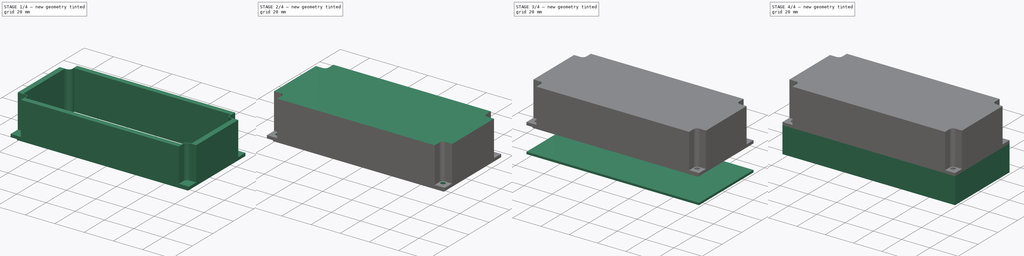
[diagram: build sequence overview — one tinted view per stage of 4, left to right]
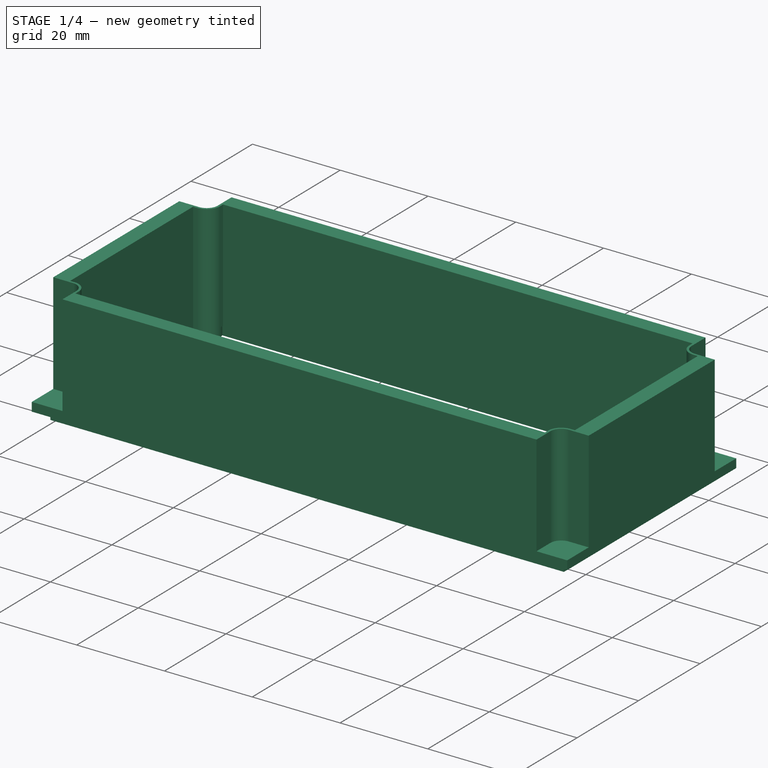
[diagram: stage 1 of 4 — iso view after this stage's code; geometry added in this stage tinted green]
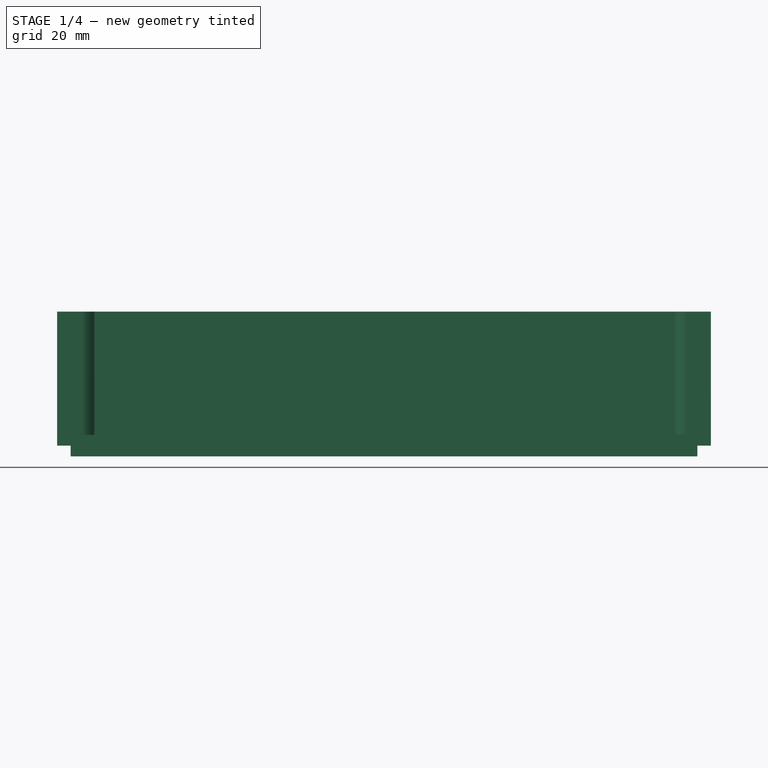
[diagram: stage 1 of 4 — front view after this stage's code; geometry added in this stage tinted green]
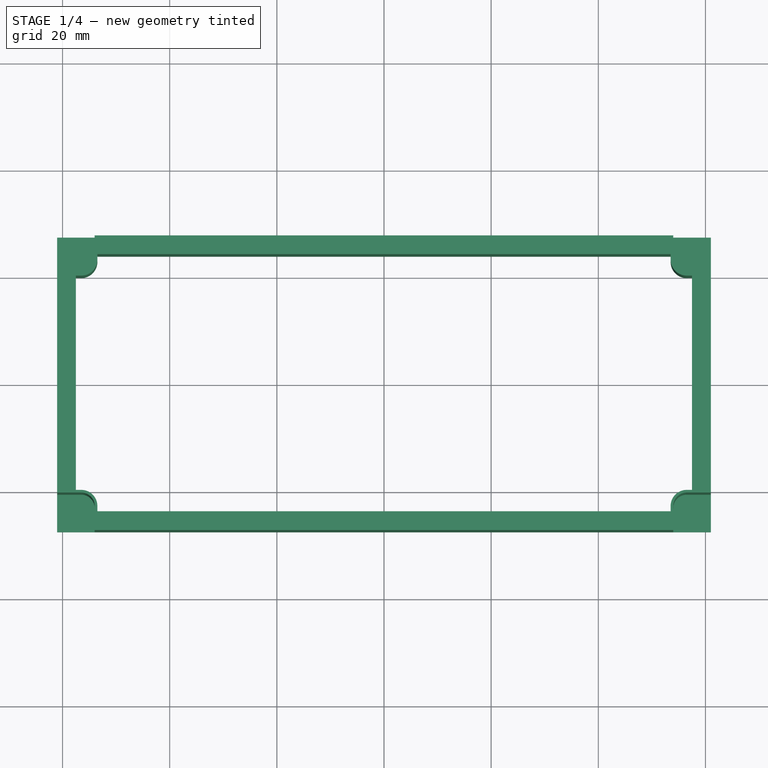
[diagram: stage 1 of 4 — top view after this stage's code; geometry added in this stage tinted green]
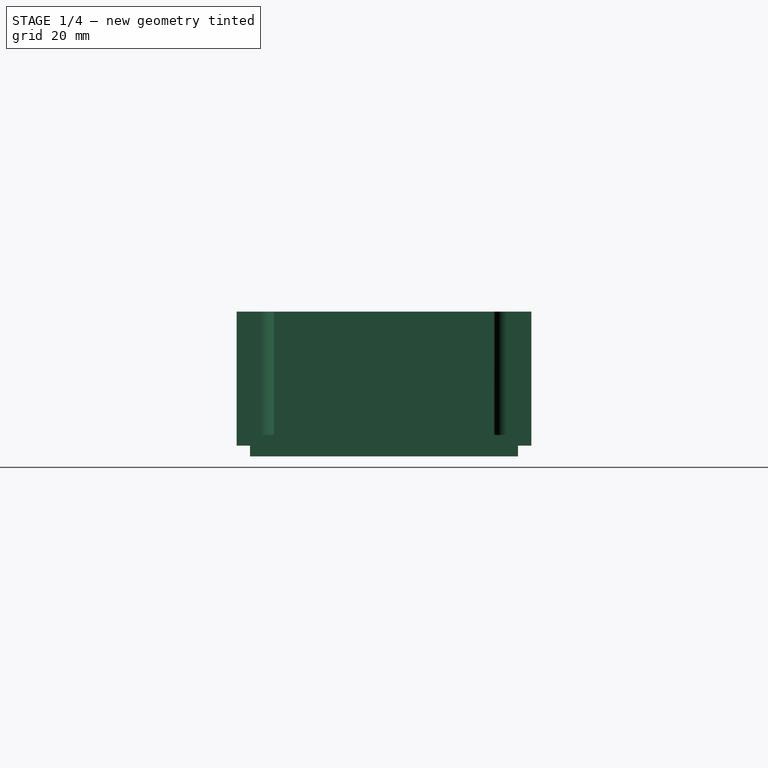
[diagram: stage 1 of 4 — right view after this stage's code; geometry added in this stage tinted green]
FCSTD DOCUMENT  (FreeCAD 0.21R33668 +26 (Git))
Label: qc_jig_box
License: All rights reserved
LicenseURL: https://en.wikipedia.org/wiki/All_rights_reserved
objects: Sketcher::SketchObject×11, PartDesign::Pad×8, PartDesign::Pocket×3, PartDesign::Body×2, PartDesign::Plane×2
note: 37 computed .brp shape members not serialized (recipe doc carries the construction recipe); baked Part::Feature solids carry a one-line shape summary decoded from their .brp

FEATURE [PartDesign::Body] Body
  Group = -> [Sketch,Pad,Sketch001,Pad001,Sketch002,Pad002,Sketch003,Pad003]
  Origin = -> Origin
  Tip = -> Pad003
FEATURE [PartDesign::Plane] DatumPlane
  AttachmentOffset = pos=(0,0,17) rot=(0,0,1;0rad)
  Length = 138.383
  MapMode = 5
  Placement = pos=(0,0,17) rot=(0,0,1;0rad)
  ResizeMode = 0
  Support = -> [XY_Plane001]
  Width = 71.3829
FEATURE [Sketcher::SketchObject] Sketch004
  FullyConstrained = true
  MapMode = 5
  Placement = pos=(0,0,17) rot=(0,0,1;0rad)
  Support = -> [DatumPlane]
  sketch-geometry (18):
    g0: LineSegment StartX=-58.5 StartY=-25 StartZ=0 EndX=-58.5 EndY=25 EndZ=0
    g1: LineSegment StartX=-58.5 StartY=25 StartZ=0 EndX=58.5 EndY=25 EndZ=0
    g2: LineSegment StartX=58.5 StartY=25 StartZ=0 EndX=58.5 EndY=-25 EndZ=0
    g3: LineSegment StartX=58.5 StartY=-25 StartZ=0 EndX=-58.5 EndY=-25 EndZ=0
    g4: GeomPoint X=0 Y=0 Z=0
    g5: GeomPoint X=0 Y=0 Z=0
    g6: Circle CenterX=-56.5 CenterY=23 CenterZ=0 NormalX=0 NormalY=0 NormalZ=1 AngleXU=0 Radius=1.25
    g7: Circle CenterX=-56.5 CenterY=-23 CenterZ=0 NormalX=0 NormalY=0 NormalZ=1 AngleXU=0 Radius=1.25
    g8: Circle CenterX=56.5 CenterY=-23 CenterZ=0 NormalX=0 NormalY=0 NormalZ=1 AngleXU=0 Radius=1.25
    g9: Circle CenterX=56.5 CenterY=23 CenterZ=0 NormalX=0 NormalY=0 NormalZ=1 AngleXU=0 Radius=1.25
    g10: ArcOfCircle CenterX=-56.5 CenterY=23 CenterZ=0 NormalX=0 NormalY=0 NormalZ=1 AngleXU=0 Radius=3 StartAngle=4.37255 EndAngle=6.62302
    g11: ArcOfCircle CenterX=-56.5 CenterY=-23 CenterZ=0 NormalX=0 NormalY=0 NormalZ=1 AngleXU=0 Radius=3 StartAngle=5.94335 EndAngle=8.19382
    g12: ArcOfCircle CenterX=56.5 CenterY=-23 CenterZ=0 NormalX=0 NormalY=0 NormalZ=1 AngleXU=0 Radius=3 StartAngle=1.23096 EndAngle=3.48143
    g13: ArcOfCircle CenterX=56.5 CenterY=23 CenterZ=0 NormalX=0 NormalY=0 NormalZ=1 AngleXU=0 Radius=3 StartAngle=2.80176 EndAngle=5.05223
    g14: LineSegment StartX=-53.6716 StartY=24 StartZ=0 EndX=53.6716 EndY=24 EndZ=0
    g15: LineSegment StartX=-57.5 StartY=-20.1716 StartZ=0 EndX=-57.5 EndY=20.1716 EndZ=0
    g16: LineSegment StartX=57.5 StartY=20.1716 StartZ=0 EndX=57.5 EndY=-20.1716 EndZ=0
    g17: LineSegment StartX=53.6716 StartY=-24 StartZ=0 EndX=-53.6716 EndY=-24 EndZ=0
  constraints (45):
    c: Coincident(g0,g1)
    c: Coincident(g1,g2)
    c: Coincident(g2,g3)
    c: Coincident(g3,g0)
    c: Horizontal(g1)
    c: Horizontal(g3)
    c: Vertical(g0)
    c: Vertical(g2)
    c: Symmetric(g1,g0,g4)
    c: Coincident(g4,g-1)
    c: DistanceX(g1,g1) = 117
    c: DistanceY(g0,g0) = 50
    c: Coincident(g5,g4)
    c: DistanceY(g7,g6) = 46
    c: DistanceX(g6,g9) = 113
    c: Symmetric(g6,g9,g-2)
    c: Symmetric(g6,g7,g-1)
    c: Vertical(g9,g8)
    c: Horizontal(g8,g7)
    c: Equal(g6,g7)
    c: Equal(g7,g9)
    c: Equal(g9,g8)
    c: Diameter(g6) = 2.5
    c: Coincident(g10,g6)
    c: Coincident(g11,g7)
    c: Coincident(g12,g8)
    c: Coincident(g13,g9)
    c: Equal(g12,g11)
    c: Diameter(g10) = 6
    c: Coincident(g14,g10)
    c: Coincident(g15,g10)
    c: Coincident(g11,g15)
    c: Coincident(g11,g17)
    c: Coincident(g16,g13)
    c: Coincident(g14,g13)
    c: Coincident(g17,g12)
    c: Coincident(g12,g16)
    c: DistanceY(g12,g13) = 48
    c: Symmetric(g13,g12,g-1)
    c: Horizontal(g17)
    c: Horizontal(g14)
    c: Vertical(g16)
    c: Vertical(g15)
    c: Symmetric(g10,g13,g-2)
    c: DistanceX(g10,g13) = 115
FEATURE [PartDesign::Pad] Pad004
  Direction = (0,0,1)
  Length = 2
  Length2 = 10
  Placement = pos=(0,0,17) rot=(0,0,1;0rad)
  Profile = -> Sketch004
  ReferenceAxis = -> Sketch004 [N_Axis]
  Reversed = true
  Type = 0
FEATURE [Sketcher::SketchObject] Sketch007
  FullyConstrained = true
  MapMode = 5
  Placement = pos=(0,0,17) rot=(0,0,1;0rad)
  Support = -> [DatumPlane]
  sketch-geometry (6):
    g0: GeomPoint X=0 Y=0 Z=0
    g1: GeomPoint X=0 Y=0 Z=0
    g2: Circle CenterX=-56.5 CenterY=23 CenterZ=0 NormalX=0 NormalY=0 NormalZ=1 AngleXU=0 Radius=1.5
    g3: Circle CenterX=-56.5 CenterY=-23 CenterZ=0 NormalX=0 NormalY=0 NormalZ=1 AngleXU=0 Radius=1.5
    g4: Circle CenterX=56.5 CenterY=-23 CenterZ=0 NormalX=0 NormalY=0 NormalZ=1 AngleXU=0 Radius=1.5
    g5: Circle CenterX=56.5 CenterY=23 CenterZ=0 NormalX=0 NormalY=0 NormalZ=1 AngleXU=0 Radius=1.5
  constraints (12):
    c: Coincident(g0,g-1)
    c: Coincident(g1,g0)
    c: DistanceY(g3,g2) = 46
    c: DistanceX(g2,g5) = 113
    c: Symmetric(g2,g5,g-2)
    c: Symmetric(g2,g3,g-1)
    c: Vertical(g5,g4)
    c: Horizontal(g4,g3)
    c: Equal(g3,g5)
    c: Equal(g5,g4)
    c: Diameter(g2) = 3
    c: Equal(g2,g3)
FEATURE [Sketcher::SketchObject] Sketch008
  FullyConstrained = true
  MapMode = 5
  Placement = pos=(0,0,17) rot=(0,0,1;0rad)
  Support = -> [DatumPlane]
  sketch-geometry (39):
    g0: GeomPoint X=0 Y=0 Z=0
    g1: GeomPoint X=0 Y=0 Z=0
    g2: Circle CenterX=-56.5 CenterY=23 CenterZ=0 NormalX=0 NormalY=0 NormalZ=1 AngleXU=0 Radius=1.25
    g3: Circle CenterX=-56.5 CenterY=-23 CenterZ=0 NormalX=0 NormalY=0 NormalZ=1 AngleXU=0 Radius=1.25
    g4: Circle CenterX=56.5 CenterY=-23 CenterZ=0 NormalX=0 NormalY=0 NormalZ=1 AngleXU=0 Radius=1.25
    g5: Circle CenterX=56.5 CenterY=23 CenterZ=0 NormalX=0 NormalY=0 NormalZ=1 AngleXU=0 Radius=1.25
    g6: ArcOfCircle CenterX=-56.5 CenterY=23 CenterZ=0 NormalX=0 NormalY=0 NormalZ=1 AngleXU=0 Radius=3 StartAngle=4.71239 EndAngle=6.28319
    g7: ArcOfCircle CenterX=-56.5 CenterY=-23 CenterZ=0 NormalX=0 NormalY=0 NormalZ=1 AngleXU=0 Radius=3 StartAngle=2e-16 EndAngle=1.5708
    g8: ArcOfCircle CenterX=56.5 CenterY=-23 CenterZ=0 NormalX=0 NormalY=0 NormalZ=1 AngleXU=0 Radius=3 StartAngle=1.5708 EndAngle=3.14159
    g9: ArcOfCircle CenterX=56.5 CenterY=23 CenterZ=0 NormalX=0 NormalY=0 NormalZ=1 AngleXU=0 Radius=3 StartAngle=3.14159 EndAngle=4.71239
    g10: LineSegment StartX=-53.5 StartY=24 StartZ=0 EndX=53.5 EndY=24 EndZ=0
    g11: LineSegment StartX=-57.5 StartY=-20 StartZ=0 EndX=-57.5 EndY=20 EndZ=0
    g12: LineSegment StartX=57.5 StartY=20 StartZ=0 EndX=57.5 EndY=-20 EndZ=0
    g13: LineSegment StartX=53.5 StartY=-24 StartZ=0 EndX=-53.5 EndY=-24 EndZ=0
    g14: LineSegment StartX=-56.5 StartY=20 StartZ=0 EndX=-57.5 EndY=20 EndZ=0
    g15: LineSegment StartX=-53.5 StartY=23 StartZ=0 EndX=-53.5 EndY=24 EndZ=0
    g16: LineSegment StartX=-56.5 StartY=-20 StartZ=0 EndX=-57.5 EndY=-20 EndZ=0
    g17: LineSegment StartX=-53.5 StartY=-23 StartZ=0 EndX=-53.5 EndY=-24 EndZ=0
    g18: LineSegment StartX=53.5 StartY=-23 StartZ=0 EndX=53.5 EndY=-24 EndZ=0
    g19: LineSegment StartX=56.5 StartY=-20 StartZ=0 EndX=57.5 EndY=-20 EndZ=0
    g20: LineSegment StartX=53.5 StartY=23 StartZ=0 EndX=53.5 EndY=24 EndZ=0
    g21: LineSegment StartX=56.5 StartY=20 StartZ=0 EndX=57.5 EndY=20 EndZ=0
    g22: LineSegment StartX=-61 StartY=-20.5 StartZ=0 EndX=-61 EndY=20.5 EndZ=0
    g23: LineSegment StartX=-54 StartY=27.5 StartZ=0 EndX=54 EndY=27.5 EndZ=0
    g24: LineSegment StartX=61 StartY=20.5 StartZ=0 EndX=61 EndY=-20.5 EndZ=0
    g25: LineSegment StartX=54 StartY=-27.5 StartZ=0 EndX=-54 EndY=-27.5 EndZ=0
    g26: GeomPoint X=0 Y=0 Z=0
    g27: ArcOfCircle CenterX=-56.5 CenterY=-23 CenterZ=0 NormalX=0 NormalY=0 NormalZ=1 AngleXU=0 Radius=2.5 StartAngle=4e-16 EndAngle=1.5708
    g28: LineSegment StartX=-54 StartY=-23 StartZ=0 EndX=-54 EndY=-27.5 EndZ=0
    g29: LineSegment StartX=-56.5 StartY=-20.5 StartZ=0 EndX=-61 EndY=-20.5 EndZ=0
    g30: ArcOfCircle CenterX=56.5 CenterY=23 CenterZ=0 NormalX=0 NormalY=0 NormalZ=1 AngleXU=0 Radius=2.5 StartAngle=3.14159 EndAngle=4.71239
    g31: ArcOfCircle CenterX=-56.5 CenterY=23 CenterZ=0 NormalX=0 NormalY=0 NormalZ=1 AngleXU=0 Radius=2.5 StartAngle=4.71239 EndAngle=6.28319
    g32: LineSegment StartX=-56.5 StartY=20.5 StartZ=0 EndX=-61 EndY=20.5 EndZ=0
    g33: LineSegment StartX=-54 StartY=23 StartZ=0 EndX=-54 EndY=27.5 EndZ=0
    g34: LineSegment StartX=54 StartY=23 StartZ=0 EndX=54 EndY=27.5 EndZ=0
    g35: LineSegment StartX=56.5 StartY=20.5 StartZ=0 EndX=61 EndY=20.5 EndZ=0
    g36: LineSegment StartX=54 StartY=-23 StartZ=0 EndX=54 EndY=-27.5 EndZ=0
    g37: LineSegment StartX=56.5 StartY=-20.5 StartZ=0 EndX=61 EndY=-20.5 EndZ=0
    g38: ArcOfCircle CenterX=56.5 CenterY=-23 CenterZ=0 NormalX=0 NormalY=0 NormalZ=1 AngleXU=0 Radius=2.5 StartAngle=1.5708 EndAngle=3.14159
  constraints (90):
    c: Coincident(g0,g-1)
    c: Coincident(g1,g0)
    c: DistanceY(g3,g2) = 46
    c: DistanceX(g2,g5) = 113
    c: Symmetric(g2,g5,g-2)
    c: Symmetric(g2,g3,g-1)
    c: Vertical(g5,g4)
    c: Horizontal(g4,g3)
    c: Equal(g2,g3)
    c: Equal(g3,g5)
    c: Equal(g5,g4)
    c: Diameter(g2) = 2.5
    c: Coincident(g6,g2)
    c: Coincident(g7,g3)
    c: Coincident(g8,g4)
    c: Coincident(g9,g5)
    c: Equal(g8,g7)
    c: Diameter(g6) = 6
    c: Horizontal(g13)
    c: Horizontal(g10)
    c: Vertical(g12)
    c: Vertical(g11)
    c: Vertical(g15)
    c: Horizontal(g14)
    c: Vertical(g17)
    c: Vertical(g18)
    c: Horizontal(g21)
    c: Vertical(g20)
    c: Horizontal(g19)
    c: Horizontal(g16)
    c: Horizontal(g23)
    c: Horizontal(g25)
    c: Vertical(g22)
    c: Vertical(g24)
    c: Coincident(g26,g0)
    c: Tangent(g7,g17) = 1.5708
    c: Coincident(g27,g7)
    c: Diameter(g27) = 5
    c: Vertical(g28)
    c: Horizontal(g29)
    c: Tangent(g27,g29) = -1.5708
    c: Tangent(g27,g28) = 1.5708
    c: Coincident(g22,g29)
    c: Coincident(g25,g28)
    c: Coincident(g17,g13)
    c: Tangent(g7,g16) = -1.5708
    c: Coincident(g16,g11)
    c: Coincident(g30,g9)
    c: Coincident(g31,g6)
    c: Equal(g27,g31)
    c: Equal(g31,g30)
    c: Horizontal(g32)
    c: Vertical(g33)
    c: Vertical(g34)
    c: Horizontal(g35)
    c: Horizontal(g37)
    c: Vertical(g36)
    c: Coincident(g23,g33)
    c: Coincident(g22,g32)
    c: Tangent(g6,g14) = 1.5708
    c: Coincident(g11,g14)
    c: Tangent(g6,g15) = -1.5708
    c: Tangent(g31,g32) = 1.5708
    c: Tangent(g31,g33) = -1.5708
    c: Coincident(g15,g10)
    c: Tangent(g30,g34) = 1.5708
    c: Tangent(g30,g35) = -1.5708
    c: Tangent(g9,g20) = 1.5708
    c: Tangent(g9,g21) = -1.5708
    c: Coincident(g21,g12)
    c: Coincident(g20,g10)
    c: Coincident(g23,g34)
    c: Coincident(g24,g35)
    c: Coincident(g25,g36)
    c: Coincident(g24,g37)
    c: Tangent(g8,g19) = 1.5708
    c: Coincident(g12,g19)
    c: Tangent(g8,g18) = -1.5708
    c: Coincident(g18,g13)
    c: Coincident(g4,g38)
    c: Tangent(g37,g38) = 1.5708
    c: DistanceY(g13,g10) = 48
    c: DistanceX(g11,g12) = 115
    c: DistanceY(g25,g23) = 55
    c: DistanceX(g22,g24) = 122
    c: Symmetric(g25,g23,g-1)
    c: Symmetric(g24,g22,g-2)
    c: Coincident(g36,g38)
    c: Symmetric(g10,g13,g-1)
    c: Symmetric(g12,g11,g-2)
FEATURE [PartDesign::Pad] Pad005
  BaseFeature = -> Pad004
  Direction = (0,0,1)
  Length = 25
  Length2 = 10
  Placement = pos=(0,0,17) rot=(0,0,1;0rad)
  Profile = -> Sketch008
  ReferenceAxis = -> Sketch008 [N_Axis]
  Type = 0
FEATURE [Sketcher::SketchObject] Sketch009
  FullyConstrained = true
  MapMode = 5
  Placement = pos=(0,0,17) rot=(0,0,1;0rad)
  Support = -> [DatumPlane]
  sketch-geometry (47):
    g0: GeomPoint X=0 Y=0 Z=0
    g1: GeomPoint X=0 Y=0 Z=0
    g2: Circle CenterX=-56.5 CenterY=23 CenterZ=0 NormalX=0 NormalY=0 NormalZ=1 AngleXU=0 Radius=1.25
    g3: Circle CenterX=-56.5 CenterY=-23 CenterZ=0 NormalX=0 NormalY=0 NormalZ=1 AngleXU=0 Radius=1.25
    g4: Circle CenterX=56.5 CenterY=-23 CenterZ=0 NormalX=0 NormalY=0 NormalZ=1 AngleXU=0 Radius=1.25
    g5: Circle CenterX=56.5 CenterY=23 CenterZ=0 NormalX=0 NormalY=0 NormalZ=1 AngleXU=0 Radius=1.25
    g6: ArcOfCircle CenterX=-56.5 CenterY=23 CenterZ=0 NormalX=0 NormalY=0 NormalZ=1 AngleXU=0 Radius=3 StartAngle=4.71239 EndAngle=6.28319
    g7: ArcOfCircle CenterX=-56.5 CenterY=-23 CenterZ=0 NormalX=0 NormalY=0 NormalZ=1 AngleXU=0 Radius=3 StartAngle=4e-16 EndAngle=1.5708
    g8: ArcOfCircle CenterX=56.5 CenterY=-23 CenterZ=0 NormalX=0 NormalY=0 NormalZ=1 AngleXU=0 Radius=3 StartAngle=1.5708 EndAngle=3.14159
    g9: ArcOfCircle CenterX=56.5 CenterY=23 CenterZ=0 NormalX=0 NormalY=0 NormalZ=1 AngleXU=0 Radius=3 StartAngle=3.14159 EndAngle=4.71239
    g10: LineSegment StartX=-53.5 StartY=24 StartZ=0 EndX=53.5 EndY=24 EndZ=0
    g11: LineSegment StartX=-57.5 StartY=-20 StartZ=0 EndX=-57.5 EndY=20 EndZ=0
    g12: LineSegment StartX=57.5 StartY=20 StartZ=0 EndX=57.5 EndY=-20 EndZ=0
    g13: LineSegment StartX=53.5 StartY=-24 StartZ=0 EndX=-53.5 EndY=-24 EndZ=0
    g14: LineSegment StartX=-56.5 StartY=20 StartZ=0 EndX=-57.5 EndY=20 EndZ=0
    g15: LineSegment StartX=-53.5 StartY=23 StartZ=0 EndX=-53.5 EndY=24 EndZ=0
    g16: LineSegment StartX=-56.5 StartY=-20 StartZ=0 EndX=-57.5 EndY=-20 EndZ=0
    g17: LineSegment StartX=-53.5 StartY=-23 StartZ=0 EndX=-53.5 EndY=-24 EndZ=0
    g18: LineSegment StartX=53.5 StartY=-23 StartZ=0 EndX=53.5 EndY=-24 EndZ=0
    g19: LineSegment StartX=56.5 StartY=-20 StartZ=0 EndX=57.5 EndY=-20 EndZ=0
    g20: LineSegment StartX=53.5 StartY=23 StartZ=0 EndX=53.5 EndY=24 EndZ=0
    g21: LineSegment StartX=56.5 StartY=20 StartZ=0 EndX=57.5 EndY=20 EndZ=0
    g22: LineSegment StartX=-61 StartY=-20.5 StartZ=0 EndX=-61 EndY=20.5 EndZ=0
    g23: LineSegment StartX=-54 StartY=27.5 StartZ=0 EndX=54 EndY=27.5 EndZ=0
    g24: LineSegment StartX=61 StartY=20.5 StartZ=0 EndX=61 EndY=-20.5 EndZ=0
    g25: LineSegment StartX=54 StartY=-27.5 StartZ=0 EndX=-54 EndY=-27.5 EndZ=0
    g26: GeomPoint X=0 Y=0 Z=0
    g27: ArcOfCircle CenterX=-56.5 CenterY=-23 CenterZ=0 NormalX=0 NormalY=0 NormalZ=1 AngleXU=0 Radius=2.5 StartAngle=6e-16 EndAngle=1.5708
    g28: LineSegment StartX=-54 StartY=-23 StartZ=0 EndX=-54 EndY=-27.5 EndZ=0
    g29: LineSegment StartX=-56.5 StartY=-20.5 StartZ=0 EndX=-61 EndY=-20.5 EndZ=0
    g30: ArcOfCircle CenterX=56.5 CenterY=23 CenterZ=0 NormalX=0 NormalY=0 NormalZ=1 AngleXU=0 Radius=2.5 StartAngle=3.14159 EndAngle=4.71239
    g31: ArcOfCircle CenterX=-56.5 CenterY=23 CenterZ=0 NormalX=0 NormalY=0 NormalZ=1 AngleXU=0 Radius=2.5 StartAngle=4.71239 EndAngle=6.28319
    g32: LineSegment StartX=-56.5 StartY=20.5 StartZ=0 EndX=-61 EndY=20.5 EndZ=0
    g33: LineSegment StartX=-54 StartY=23 StartZ=0 EndX=-54 EndY=27.5 EndZ=0
    g34: LineSegment StartX=54 StartY=23 StartZ=0 EndX=54 EndY=27.5 EndZ=0
    g35: LineSegment StartX=56.5 StartY=20.5 StartZ=0 EndX=61 EndY=20.5 EndZ=0
    g36: LineSegment StartX=54 StartY=-23 StartZ=0 EndX=54 EndY=-27.5 EndZ=0
    g37: LineSegment StartX=56.5 StartY=-20.5 StartZ=0 EndX=61 EndY=-20.5 EndZ=0
    g38: ArcOfCircle CenterX=56.5 CenterY=-23 CenterZ=0 NormalX=0 NormalY=0 NormalZ=1 AngleXU=0 Radius=2.5 StartAngle=1.5708 EndAngle=3.14159
    g39: LineSegment StartX=-61 StartY=-20.5 StartZ=0 EndX=-61 EndY=-27.5 EndZ=0
    g40: LineSegment StartX=-61 StartY=-27.5 StartZ=0 EndX=-54 EndY=-27.5 EndZ=0
    g41: LineSegment StartX=-61 StartY=20.5 StartZ=0 EndX=-61 EndY=27.5 EndZ=0
    g42: LineSegment StartX=-54 StartY=27.5 StartZ=0 EndX=-61 EndY=27.5 EndZ=0
    g43: LineSegment StartX=54 StartY=27.5 StartZ=0 EndX=61 EndY=27.5 EndZ=0
    g44: LineSegment StartX=61 StartY=20.5 StartZ=0 EndX=61 EndY=27.5 EndZ=0
    g45: LineSegment StartX=54 StartY=-27.5 StartZ=0 EndX=61 EndY=-27.5 EndZ=0
    g46: LineSegment StartX=61 StartY=-27.5 StartZ=0 EndX=61 EndY=-20.5 EndZ=0
  constraints (110):
    c: Coincident(g0,g-1)
    c: Coincident(g1,g0)
    c: DistanceY(g3,g2) = 46
    c: DistanceX(g2,g5) = 113
    c: Symmetric(g2,g5,g-2)
    c: Symmetric(g2,g3,g-1)
    c: Vertical(g5,g4)
    c: Horizontal(g4,g3)
    c: Equal(g2,g3)
    c: Equal(g3,g5)
    c: Equal(g5,g4)
    c: Diameter(g2) = 2.5
    c: Coincident(g6,g2)
    c: Coincident(g7,g3)
    c: Coincident(g8,g4)
    c: Coincident(g9,g5)
    c: Equal(g8,g7)
    c: Diameter(g6) = 6
    c: Horizontal(g13)
    c: Horizontal(g10)
    c: Vertical(g12)
    c: Vertical(g11)
    c: Vertical(g15)
    c: Horizontal(g14)
    c: Vertical(g17)
    c: Vertical(g18)
    c: Horizontal(g21)
    c: Vertical(g20)
    c: Horizontal(g19)
    c: Horizontal(g16)
    c: Horizontal(g23)
    c: Horizontal(g25)
    c: Vertical(g22)
    c: Vertical(g24)
    c: Coincident(g26,g0)
    c: Tangent(g7,g17) = 1.5708
    c: Coincident(g27,g7)
    c: Diameter(g27) = 5
    c: Vertical(g28)
    c: Horizontal(g29)
    c: Tangent(g27,g29) = -1.5708
    c: Tangent(g27,g28) = 1.5708
    c: Coincident(g22,g29)
    c: Coincident(g25,g28)
    c: Coincident(g17,g13)
    c: Tangent(g7,g16) = -1.5708
    c: Coincident(g16,g11)
    c: Coincident(g30,g9)
    c: Coincident(g31,g6)
    c: Equal(g27,g31)
    c: Equal(g31,g30)
    c: Horizontal(g32)
    c: Vertical(g33)
    c: Vertical(g34)
    c: Horizontal(g35)
    c: Horizontal(g37)
    c: Vertical(g36)
    c: Coincident(g23,g33)
    c: Coincident(g22,g32)
    c: Tangent(g6,g14) = 1.5708
    c: Coincident(g11,g14)
    c: Tangent(g6,g15) = -1.5708
    c: Tangent(g31,g32) = 1.5708
    c: Tangent(g31,g33) = -1.5708
    c: Coincident(g15,g10)
    c: Tangent(g30,g34) = 1.5708
    c: Tangent(g30,g35) = -1.5708
    c: Tangent(g9,g20) = 1.5708
    c: Tangent(g9,g21) = -1.5708
    c: Coincident(g21,g12)
    c: Coincident(g20,g10)
    c: Coincident(g23,g34)
    c: Coincident(g24,g35)
    c: Coincident(g25,g36)
    c: Coincident(g24,g37)
    c: Tangent(g8,g19) = 1.5708
    c: Coincident(g12,g19)
    c: Tangent(g8,g18) = -1.5708
    c: Coincident(g18,g13)
    c: Coincident(g4,g38)
    c: Tangent(g37,g38) = 1.5708
    c: DistanceY(g13,g10) = 48
    c: DistanceX(g11,g12) = 115
    c: DistanceY(g25,g23) = 55
    c: DistanceX(g22,g24) = 122
    c: Symmetric(g25,g23,g-1)
    c: Symmetric(g24,g22,g-2)
    c: Coincident(g36,g38)
    c: Symmetric(g10,g13,g-1)
    c: Symmetric(g12,g11,g-2)
    c: Coincident(g39,g22)
    c: Vertical(g39)
    c: Coincident(g40,g39)
    c: Coincident(g40,g25)
    c: Horizontal(g40)
    c: Coincident(g41,g22)
    c: Vertical(g41)
    c: Coincident(g42,g23)
    c: Coincident(g42,g41)
    c: Horizontal(g42)
    c: Coincident(g43,g23)
    c: Horizontal(g43)
    c: Coincident(g44,g24)
    c: Coincident(g44,g43)
    c: Coincident(g45,g25)
    c: Horizontal(g45)
    c: Coincident(g46,g45)
    c: Coincident(g46,g24)
    c: Vertical(g46)
    c: Vertical(g44)
FEATURE [PartDesign::Pad] Pad006
  BaseFeature = -> Pad005
  Direction = (0,0,1)
  Length = 2
  Length2 = 10
  Placement = pos=(0,0,17) rot=(0,0,1;0rad)
  Profile = -> Sketch009
  ReferenceAxis = -> Sketch009 [N_Axis]
  Refine = true
  Type = 0
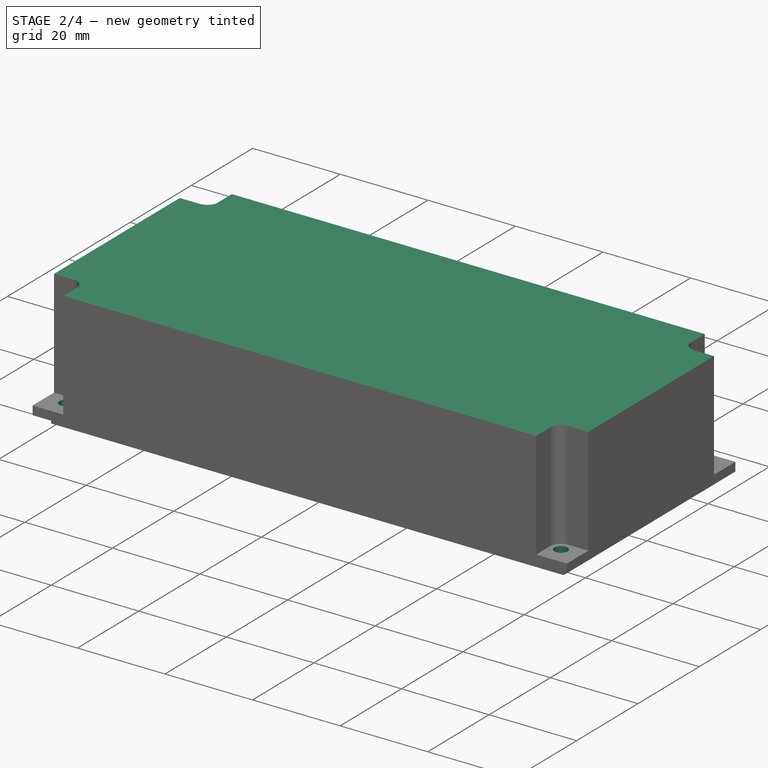
[diagram: stage 2 of 4 — iso view after this stage's code; geometry added in this stage tinted green]
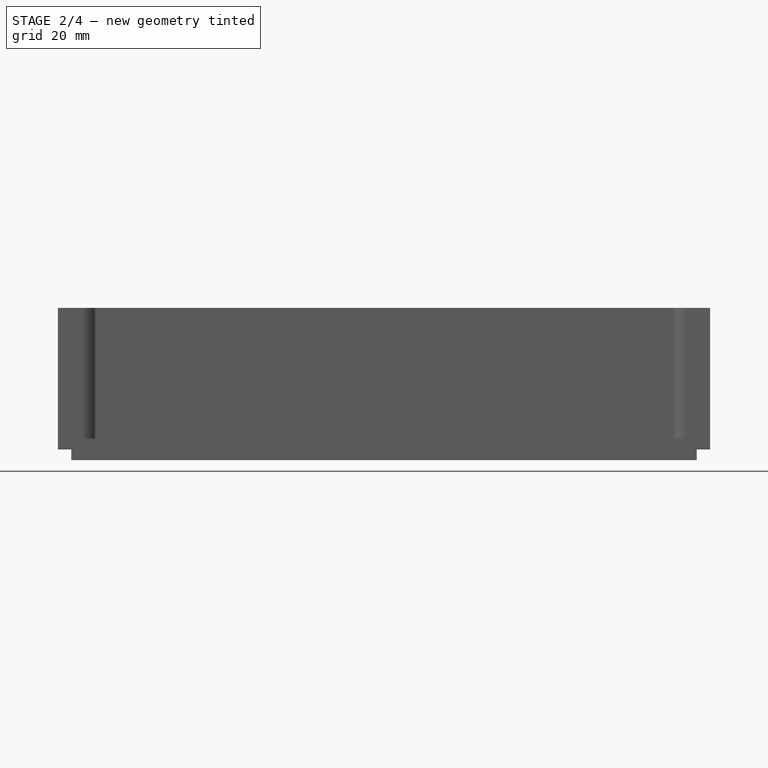
[diagram: stage 2 of 4 — front view after this stage's code; geometry added in this stage tinted green]
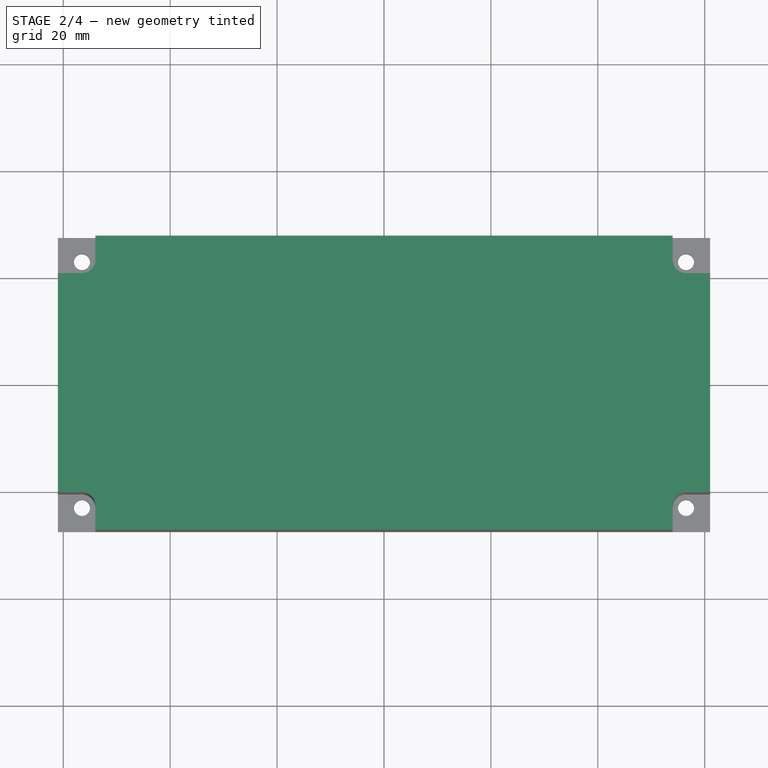
[diagram: stage 2 of 4 — top view after this stage's code; geometry added in this stage tinted green]
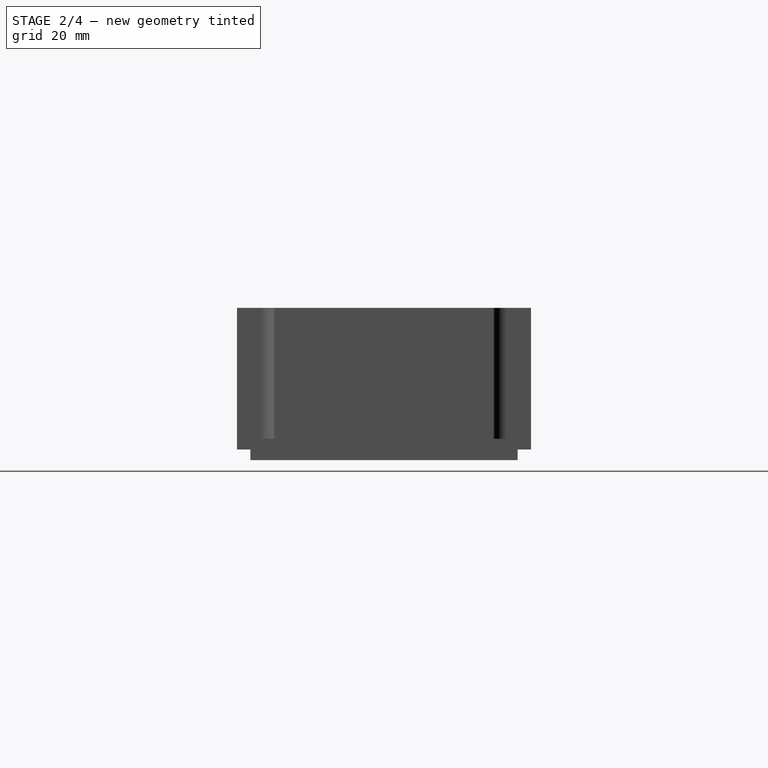
[diagram: stage 2 of 4 — right view after this stage's code; geometry added in this stage tinted green]
FEATURE [PartDesign::Pocket] Pocket
  BaseFeature = -> Pad006
  Direction = (0,0,-1)
  Length = 5
  Length2 = 5
  Midplane = true
  Placement = pos=(0,0,17) rot=(0,0,1;0rad)
  Profile = -> Sketch007
  ReferenceAxis = -> Sketch007 [N_Axis]
  Type = 1
FEATURE [PartDesign::Plane] DatumPlane001
  AttachmentOffset = pos=(0,0,42) rot=(0,0,1;0rad)
  Length = 138.383
  MapMode = 5
  Placement = pos=(0,0,42) rot=(0,0,1;0rad)
  ResizeMode = 0
  Support = -> [XY_Plane001]
  Width = 71.3829
FEATURE [Sketcher::SketchObject] Sketch010
  FullyConstrained = true
  MapMode = 5
  Placement = pos=(0,0,42) rot=(0,0,1;0rad)
  Support = -> [DatumPlane001]
  sketch-geometry (23):
    g0: GeomPoint X=0 Y=0 Z=0
    g1: GeomPoint X=0 Y=0 Z=0
    g2: Circle CenterX=-56.5 CenterY=23 CenterZ=0 NormalX=0 NormalY=0 NormalZ=1 AngleXU=0 Radius=1.25
    g3: Circle CenterX=-56.5 CenterY=-23 CenterZ=0 NormalX=0 NormalY=0 NormalZ=1 AngleXU=0 Radius=1.25
    g4: Circle CenterX=56.5 CenterY=-23 CenterZ=0 NormalX=0 NormalY=0 NormalZ=1 AngleXU=0 Radius=1.25
    g5: Circle CenterX=56.5 CenterY=23 CenterZ=0 NormalX=0 NormalY=0 NormalZ=1 AngleXU=0 Radius=1.25
    g6: LineSegment StartX=-61 StartY=-20.5 StartZ=0 EndX=-61 EndY=20.5 EndZ=0
    g7: LineSegment StartX=-54 StartY=27.5 StartZ=0 EndX=54 EndY=27.5 EndZ=0
    g8: LineSegment StartX=61 StartY=20.5 StartZ=0 EndX=61 EndY=-20.5 EndZ=0
    g9: LineSegment StartX=54 StartY=-27.5 StartZ=0 EndX=-54 EndY=-27.5 EndZ=0
    g10: GeomPoint X=0 Y=0 Z=0
    g11: ArcOfCircle CenterX=-56.5 CenterY=-23 CenterZ=0 NormalX=0 NormalY=0 NormalZ=1 AngleXU=0 Radius=2.5 StartAngle=0 EndAngle=1.5708
    g12: LineSegment StartX=-54 StartY=-23 StartZ=0 EndX=-54 EndY=-27.5 EndZ=0
    g13: LineSegment StartX=-56.5 StartY=-20.5 StartZ=0 EndX=-61 EndY=-20.5 EndZ=0
    g14: ArcOfCircle CenterX=56.5 CenterY=23 CenterZ=0 NormalX=0 NormalY=0 NormalZ=1 AngleXU=0 Radius=2.5 StartAngle=3.14159 EndAngle=4.71239
    g15: ArcOfCircle CenterX=-56.5 CenterY=23 CenterZ=0 NormalX=0 NormalY=0 NormalZ=1 AngleXU=0 Radius=2.5 StartAngle=4.71239 EndAngle=6.28319
    g16: LineSegment StartX=-56.5 StartY=20.5 StartZ=0 EndX=-61 EndY=20.5 EndZ=0
    g17: LineSegment StartX=-54 StartY=23 StartZ=0 EndX=-54 EndY=27.5 EndZ=0
    g18: LineSegment StartX=54 StartY=23 StartZ=0 EndX=54 EndY=27.5 EndZ=0
    g19: LineSegment StartX=56.5 StartY=20.5 StartZ=0 EndX=61 EndY=20.5 EndZ=0
    g20: LineSegment StartX=54 StartY=-23 StartZ=0 EndX=54 EndY=-27.5 EndZ=0
    g21: LineSegment StartX=56.5 StartY=-20.5 StartZ=0 EndX=61 EndY=-20.5 EndZ=0
    g22: ArcOfCircle CenterX=56.5 CenterY=-23 CenterZ=0 NormalX=0 NormalY=0 NormalZ=1 AngleXU=0 Radius=2.5 StartAngle=1.5708 EndAngle=3.14159
  constraints (51):
    c: Coincident(g0,g-1)
    c: Coincident(g1,g0)
    c: DistanceY(g3,g2) = 46
    c: DistanceX(g2,g5) = 113
    c: Symmetric(g2,g5,g-2)
    c: Symmetric(g2,g3,g-1)
    c: Vertical(g5,g4)
    c: Horizontal(g4,g3)
    c: Equal(g2,g3)
    c: Equal(g3,g5)
    c: Equal(g5,g4)
    c: Diameter(g2) = 2.5
    c: Horizontal(g7)
    c: Horizontal(g9)
    c: Vertical(g6)
    c: Vertical(g8)
    c: Coincident(g10,g0)
    c: Diameter(g11) = 5
    c: Vertical(g12)
    c: Horizontal(g13)
    c: Tangent(g11,g13) = -1.5708
    c: Tangent(g11,g12) = 1.5708
    c: Coincident(g6,g13)
    c: Coincident(g9,g12)
    c: Equal(g11,g15)
    c: Equal(g15,g14)
    c: Horizontal(g16)
    c: Vertical(g17)
    c: Vertical(g18)
    c: Horizontal(g19)
    c: Horizontal(g21)
    c: Coincident(g7,g17)
    c: Coincident(g6,g16)
    c: Tangent(g15,g16) = 1.5708
    c: Tangent(g15,g17) = -1.5708
    c: Tangent(g14,g18) = 1.5708
    c: Tangent(g14,g19) = -1.5708
    c: Coincident(g7,g18)
    c: Coincident(g8,g19)
    c: Coincident(g9,g20)
    c: Coincident(g8,g21)
    c: Coincident(g4,g22)
    c: Tangent(g21,g22) = 1.5708
    c: DistanceY(g9,g7) = 55
    c: DistanceX(g6,g8) = 122
    c: Symmetric(g9,g7,g-1)
    c: Symmetric(g8,g6,g-2)
    c: Coincident(g14,g5)
    c: Tangent(g20,g22) = -1.5708
    c: Coincident(g11,g3)
    c: Coincident(g15,g2)
FEATURE [PartDesign::Pad] Pad007
  BaseFeature = -> Pocket
  Direction = (0,0,1)
  Length = 1.5
  Length2 = 10
  Placement = pos=(0,0,17) rot=(0,0,1;0rad)
  Profile = -> Sketch010
  ReferenceAxis = -> Sketch010 [N_Axis]
  Refine = true
  Type = 0
FEATURE [Sketcher::SketchObject] Sketch011
  FullyConstrained = true
  MapMode = 5
  Placement = pos=(0,0,0) rot=(0.57735,0.57735,0.57735;2.0944rad)
  Support = -> [YZ_Plane001]
  sketch-geometry (6):
    g0: LineSegment StartX=-10 StartY=27.5 StartZ=0 EndX=-10 EndY=15 EndZ=0
    g1: LineSegment StartX=-10 StartY=15 StartZ=0 EndX=10 EndY=15 EndZ=0
    g2: LineSegment StartX=10 StartY=15 StartZ=0 EndX=10 EndY=27.5 EndZ=0
    g3: LineSegment StartX=7.5 StartY=30 StartZ=0 EndX=-7.5 EndY=30 EndZ=0
    g4: ArcOfCircle CenterX=-7.5 CenterY=27.5 CenterZ=0 NormalX=0 NormalY=0 NormalZ=1 AngleXU=0 Radius=2.5 StartAngle=1.5708 EndAngle=3.14159
    g5: ArcOfCircle CenterX=7.5 CenterY=27.5 CenterZ=0 NormalX=0 NormalY=0 NormalZ=1 AngleXU=0 Radius=2.5 StartAngle=5e-16 EndAngle=1.5708
  constraints (15):
    c: Coincident(g0,g1)
    c: Coincident(g1,g2)
    c: Horizontal(g3)
    c: Vertical(g0)
    c: Vertical(g2)
    c: DistanceY(g-1,g1) = 15
    c: Tangent(g3,g4) = -1.5708
    c: Tangent(g0,g4) = -1.5708
    c: Tangent(g3,g5) = -1.5708
    c: Tangent(g2,g5) = -1.5708
    c: Equal(g5,g4)
    c: Diameter(g5) = 5
    c: Symmetric(g0,g1,g-2)
    c: DistanceY(g1,g3) = 15
    c: DistanceX(g1,g1) = 20
FEATURE [PartDesign::Pocket] Pocket001
  BaseFeature = -> Pad007
  Direction = (-1,2e-16,-3e-16)
  Length = 5
  Length2 = 5
  Placement = pos=(0,0,17) rot=(0,0,1;0rad)
  Profile = -> Sketch011
  ReferenceAxis = -> Sketch011 [N_Axis]
  Type = 1
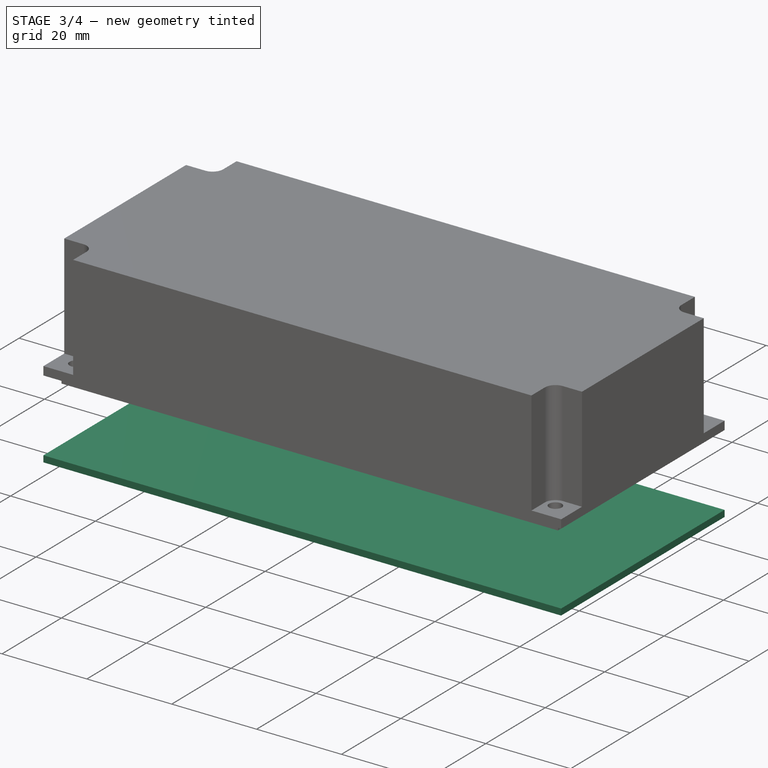
[diagram: stage 3 of 4 — iso view after this stage's code; geometry added in this stage tinted green]
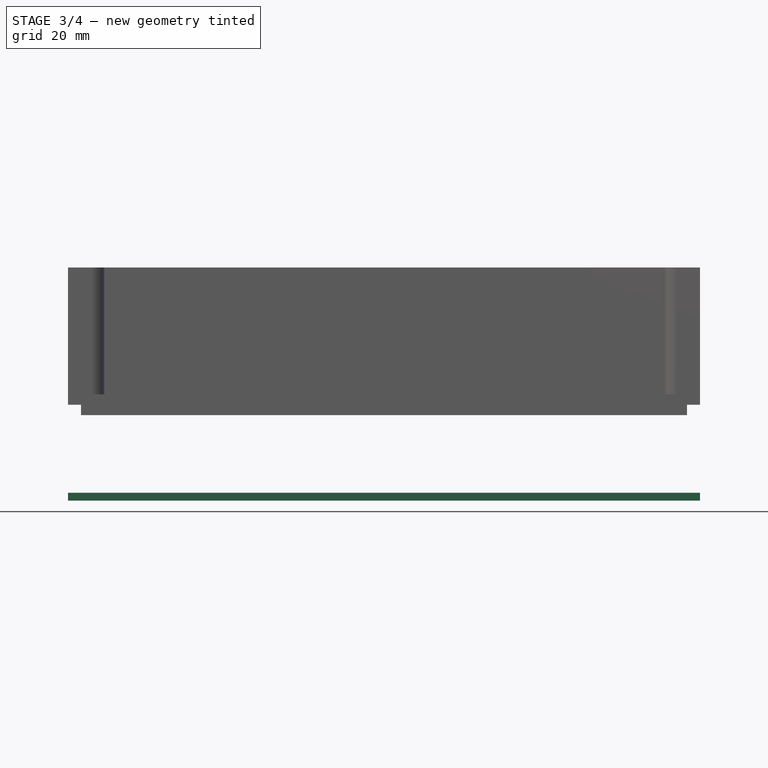
[diagram: stage 3 of 4 — front view after this stage's code; geometry added in this stage tinted green]
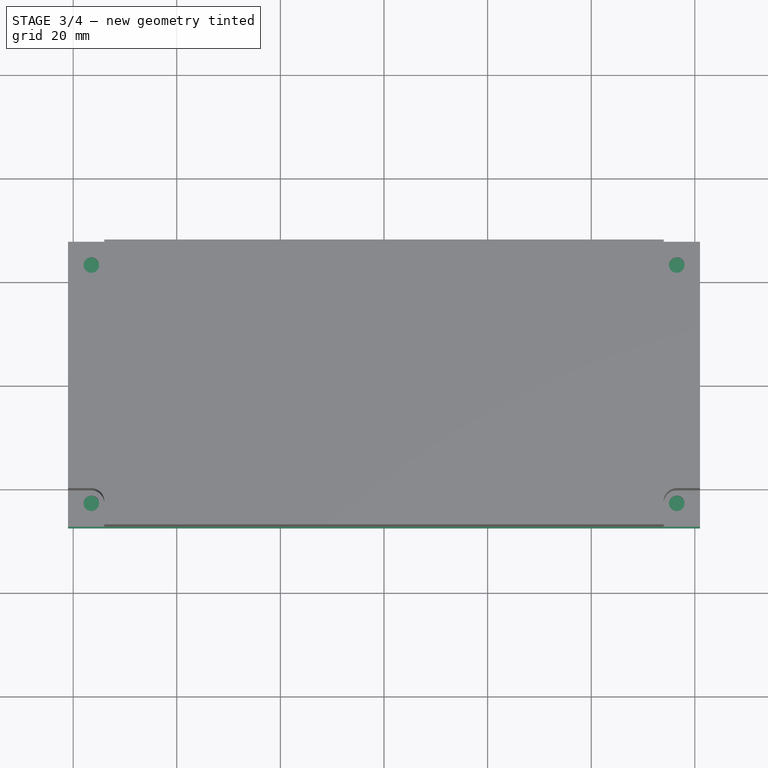
[diagram: stage 3 of 4 — top view after this stage's code; geometry added in this stage tinted green]
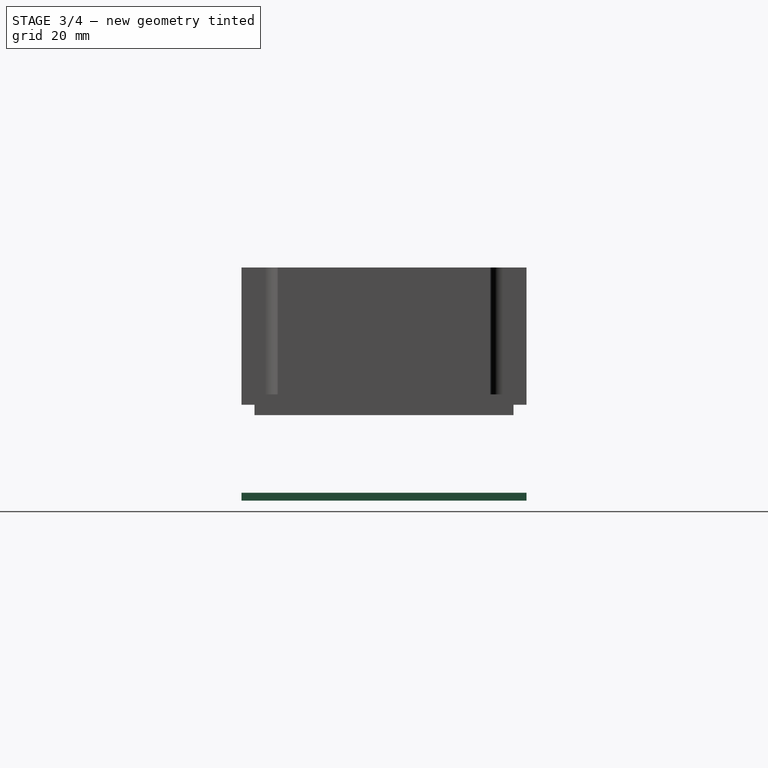
[diagram: stage 3 of 4 — right view after this stage's code; geometry added in this stage tinted green]
FEATURE [Sketcher::SketchObject] Sketch
  FullyConstrained = true
  MapMode = 5
  Support = -> [XY_Plane]
  sketch-geometry (5):
    g0: LineSegment StartX=-61 StartY=-27.5 StartZ=0 EndX=-61 EndY=27.5 EndZ=0
    g1: LineSegment StartX=-61 StartY=27.5 StartZ=0 EndX=61 EndY=27.5 EndZ=0
    g2: LineSegment StartX=61 StartY=27.5 StartZ=0 EndX=61 EndY=-27.5 EndZ=0
    g3: LineSegment StartX=61 StartY=-27.5 StartZ=0 EndX=-61 EndY=-27.5 EndZ=0
    g4: GeomPoint X=0 Y=0 Z=0
  constraints (12):
    c: Coincident(g0,g1)
    c: Coincident(g1,g2)
    c: Coincident(g2,g3)
    c: Coincident(g3,g0)
    c: Horizontal(g1)
    c: Horizontal(g3)
    c: Vertical(g0)
    c: Vertical(g2)
    c: Symmetric(g1,g0,g4)
    c: Coincident(g4,g-1)
    c: DistanceX(g1,g1) = 122
    c: DistanceY(g0,g0) = 55
FEATURE [PartDesign::Pad] Pad
  Direction = (0,0,1)
  Length = 1.5
  Length2 = 10
  Profile = -> Sketch
  ReferenceAxis = -> Sketch [N_Axis]
  Refine = true
  Reversed = true
  Type = 0
FEATURE [Sketcher::SketchObject] Sketch012
  FullyConstrained = true
  MapMode = 5
  Placement = pos=(0,0,0) rot=(1,0,0;1.5708rad)
  Support = -> [XZ_Plane001]
  sketch-geometry (12):
    g0: LineSegment StartX=10 StartY=27.5 StartZ=0 EndX=10 EndY=15 EndZ=0
    g1: LineSegment StartX=10 StartY=15 StartZ=0 EndX=40 EndY=15 EndZ=0
    g2: LineSegment StartX=40 StartY=15 StartZ=0 EndX=40 EndY=27.5 EndZ=0
    g3: LineSegment StartX=37.5 StartY=30 StartZ=0 EndX=12.5 EndY=30 EndZ=0
    g4: ArcOfCircle CenterX=12.5 CenterY=27.5 CenterZ=0 NormalX=0 NormalY=0 NormalZ=1 AngleXU=0 Radius=2.5 StartAngle=1.5708 EndAngle=3.14159
    g5: ArcOfCircle CenterX=37.5 CenterY=27.5 CenterZ=0 NormalX=0 NormalY=0 NormalZ=1 AngleXU=0 Radius=2.5 StartAngle=0 EndAngle=1.5708
    g6: LineSegment StartX=-15 StartY=15 StartZ=0 EndX=-10 EndY=15 EndZ=0
    g7: LineSegment StartX=-10 StartY=15 StartZ=0 EndX=-10 EndY=18.5 EndZ=0
    g8: LineSegment StartX=-11.5 StartY=20 StartZ=0 EndX=-13.5 EndY=20 EndZ=0
    g9: LineSegment StartX=-15 StartY=18.5 StartZ=0 EndX=-15 EndY=15 EndZ=0
    g10: ArcOfCircle CenterX=-13.5 CenterY=18.5 CenterZ=0 NormalX=0 NormalY=0 NormalZ=1 AngleXU=0 Radius=1.5 StartAngle=1.5708 EndAngle=3.14159
    g11: ArcOfCircle CenterX=-11.5 CenterY=18.5 CenterZ=0 NormalX=0 NormalY=0 NormalZ=1 AngleXU=0 Radius=1.5 StartAngle=-9e-16 EndAngle=1.5708
  constraints (32):
    c: Coincident(g0,g1)
    c: Coincident(g1,g2)
    c: Horizontal(g1)
    c: Horizontal(g3)
    c: Vertical(g0)
    c: Vertical(g2)
    c: DistanceY(g-1,g1) = 15
    c: Tangent(g3,g4) = -1.5708
    c: Tangent(g0,g4) = -1.5708
    c: Tangent(g3,g5) = -1.5708
    c: Tangent(g2,g5) = -1.5708
    c: Equal(g5,g4)
    c: Diameter(g5) = 5
    c: DistanceX(g1,g1) = 30
    c: DistanceY(g1,g3) = 15
    c: DistanceX(g-1,g0) = 10
    c: Coincident(g6,g7)
    c: Coincident(g9,g6)
    c: Horizontal(g6)
    c: Horizontal(g8)
    c: Vertical(g7)
    c: Vertical(g9)
    c: Horizontal(g6,g0)
    c: Tangent(g8,g10) = -1.5708
    c: Tangent(g9,g10) = -1.5708
    c: Tangent(g8,g11) = -1.5708
    c: Tangent(g7,g11) = -1.5708
    c: DistanceX(g9,g7) = 5
    c: Equal(g11,g10)
    c: Diameter(g11) = 3
    c: DistanceY(g6,g8) = 5
    c: DistanceX(g6,g-1) = 10
FEATURE [PartDesign::Pocket] Pocket002
  BaseFeature = -> Pocket001
  Direction = (0,1,2e-16)
  Length = 5
  Length2 = 5
  Placement = pos=(0,0,17) rot=(0,0,1;0rad)
  Profile = -> Sketch012
  ReferenceAxis = -> Sketch012 [N_Axis]
  Type = 1
FEATURE [PartDesign::Body] Body001
  Group = -> [DatumPlane,Sketch004,Pad004,Sketch007,Sketch008,Pad005,Sketch009,Pad006,Pocket,DatumPlane001,Sketch010,Pad007,Sketch011,Pocket001,Sketch012,Pocket002]
  Origin = -> Origin001
  Tip = -> Pocket002
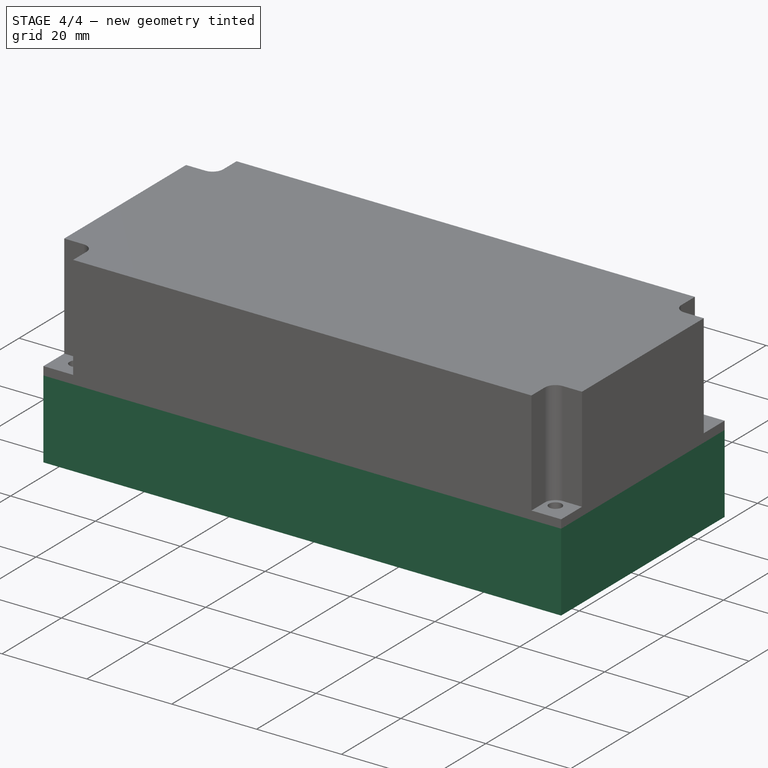
[diagram: stage 4 of 4 — iso view after this stage's code; geometry added in this stage tinted green]
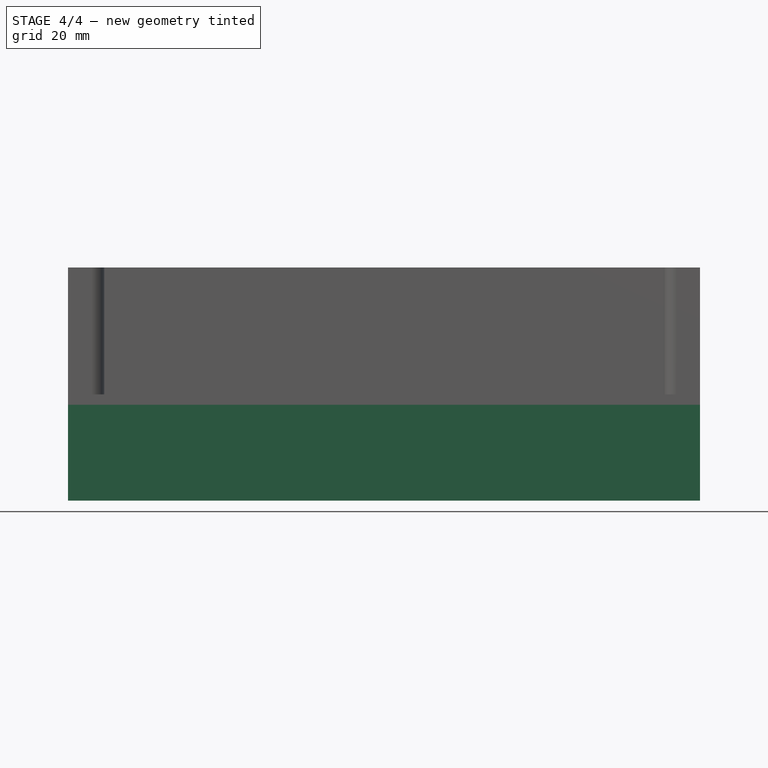
[diagram: stage 4 of 4 — front view after this stage's code; geometry added in this stage tinted green]
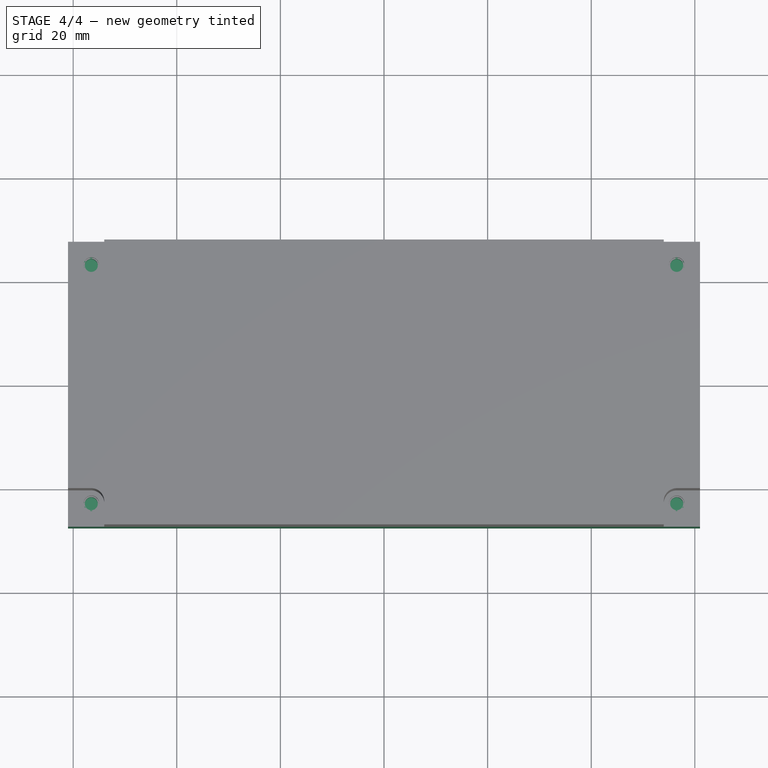
[diagram: stage 4 of 4 — top view after this stage's code; geometry added in this stage tinted green]
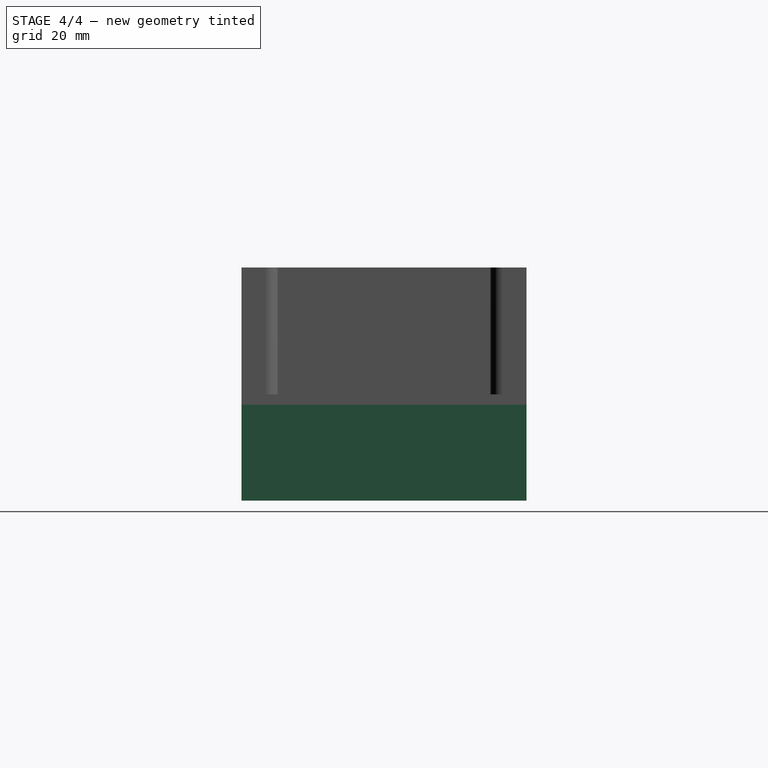
[diagram: stage 4 of 4 — right view after this stage's code; geometry added in this stage tinted green]
FEATURE [Sketcher::SketchObject] Sketch001
  FullyConstrained = true
  MapMode = 5
  Support = -> [XY_Plane]
  sketch-geometry (15):
    g0: LineSegment StartX=-61 StartY=-27.5 StartZ=0 EndX=-61 EndY=27.5 EndZ=0
    g1: LineSegment StartX=-61 StartY=27.5 StartZ=0 EndX=61 EndY=27.5 EndZ=0
    g2: LineSegment StartX=61 StartY=27.5 StartZ=0 EndX=61 EndY=-27.5 EndZ=0
    g3: LineSegment StartX=61 StartY=-27.5 StartZ=0 EndX=-61 EndY=-27.5 EndZ=0
    g4: GeomPoint X=0 Y=0 Z=0
    g5: LineSegment StartX=-59.5 StartY=-26 StartZ=0 EndX=-59.5 EndY=26 EndZ=0
    g6: LineSegment StartX=-59.5 StartY=26 StartZ=0 EndX=59.5 EndY=26 EndZ=0
    g7: LineSegment StartX=59.5 StartY=26 StartZ=0 EndX=59.5 EndY=-26 EndZ=0
    g8: LineSegment StartX=59.5 StartY=-26 StartZ=0 EndX=-59.5 EndY=-26 EndZ=0
    g9: GeomPoint X=0 Y=0 Z=0
    g10: LineSegment StartX=-53.5 StartY=-20 StartZ=0 EndX=-53.5 EndY=20 EndZ=0
    g11: LineSegment StartX=-53.5 StartY=20 StartZ=0 EndX=53.5 EndY=20 EndZ=0
    g12: LineSegment StartX=53.5 StartY=20 StartZ=0 EndX=53.5 EndY=-20 EndZ=0
    g13: LineSegment StartX=53.5 StartY=-20 StartZ=0 EndX=-53.5 EndY=-20 EndZ=0
    g14: GeomPoint X=0 Y=0 Z=0
  constraints (40):
    c: Coincident(g0,g1)
    c: Coincident(g1,g2)
    c: Coincident(g2,g3)
    c: Coincident(g3,g0)
    c: Horizontal(g1)
    c: Horizontal(g3)
    c: Vertical(g0)
    c: Vertical(g2)
    c: Symmetric(g1,g0,g4)
    c: Coincident(g4,g-1)
    c: Coincident(g5,g6)
    c: Coincident(g6,g7)
    c: Coincident(g7,g8)
    c: Coincident(g8,g5)
    c: Horizontal(g6)
    c: Horizontal(g8)
    c: Vertical(g5)
    c: Vertical(g7)
    c: Symmetric(g6,g5,g9)
    c: Coincident(g9,g4)
    c: DistanceX(g6,g1) = 1.5
    c: DistanceY(g6,g1) = 1.5
    c: Coincident(g10,g11)
    c: Coincident(g11,g12)
    c: Coincident(g12,g13)
    c: Coincident(g13,g10)
    c: Horizontal(g11)
    c: Horizontal(g13)
    c: Vertical(g10)
    c: Vertical(g12)
    c: Symmetric(g11,g10,g14)
    c: Coincident(g14,g4)
    c: DistanceX(g11,g11) = 107
    c: DistanceY(g12,g12) = 40
    c: DistanceX(g11,g6) = 6
    c: DistanceY(g11,g6) = 6
    c: DistanceY(g0,g0) = 55
    c: DistanceX(g1,g1) = 122
    c: DistanceX(g6,g6) = 119
    c: DistanceY(g5,g5) = 52
FEATURE [PartDesign::Pad] Pad001
  BaseFeature = -> Pad
  Direction = (0,0,1)
  Length = 17
  Length2 = 10
  Profile = -> Sketch001
  ReferenceAxis = -> Sketch001 [N_Axis]
  Refine = true
  Type = 0
FEATURE [Sketcher::SketchObject] Sketch002
  FullyConstrained = true
  MapMode = 5
  Support = -> [XY_Plane]
  sketch-geometry (29):
    g0: Circle CenterX=-47.5 CenterY=17.75 CenterZ=0 NormalX=0 NormalY=0 NormalZ=1 AngleXU=0 Radius=1
    g1: Circle CenterX=-47.5 CenterY=-17.75 CenterZ=0 NormalX=0 NormalY=0 NormalZ=1 AngleXU=0 Radius=1
    g2: Circle CenterX=47.5 CenterY=17.75 CenterZ=0 NormalX=0 NormalY=0 NormalZ=1 AngleXU=0 Radius=1
    g3: Circle CenterX=47.5 CenterY=-17.75 CenterZ=0 NormalX=0 NormalY=0 NormalZ=1 AngleXU=0 Radius=1
    g4: LineSegment StartX=-47.5 StartY=17.75 StartZ=0 EndX=47.5 EndY=17.75 EndZ=0
    g5: LineSegment StartX=-47.5 StartY=-17.75 StartZ=0 EndX=47.5 EndY=-17.75 EndZ=0
    g6: LineSegment StartX=47.5 StartY=17.75 StartZ=0 EndX=47.5 EndY=-17.75 EndZ=0
    g7: LineSegment StartX=-47.5 StartY=17.75 StartZ=0 EndX=-47.5 EndY=-17.75 EndZ=0
    g8: LineSegment StartX=-59.5 StartY=-26 StartZ=0 EndX=-44.5 EndY=-26 EndZ=0
    g9: LineSegment StartX=-59.5 StartY=-15 StartZ=0 EndX=-44.5 EndY=-15 EndZ=0
    g10: LineSegment StartX=-44.5 StartY=-15 StartZ=0 EndX=-44.5 EndY=-26 EndZ=0
    g11: LineSegment StartX=-59.5 StartY=-15 StartZ=0 EndX=-59.5 EndY=-26 EndZ=0
    g12: LineSegment StartX=-59.5 StartY=26 StartZ=0 EndX=-44.5 EndY=26 EndZ=0
    g13: LineSegment StartX=-44.5 StartY=26 StartZ=0 EndX=-44.5 EndY=15 EndZ=0
    g14: LineSegment StartX=-44.5 StartY=15 StartZ=0 EndX=-59.5 EndY=15 EndZ=0
    g15: LineSegment StartX=-59.5 StartY=15 StartZ=0 EndX=-59.5 EndY=26 EndZ=0
    g16: LineSegment StartX=59.5 StartY=26 StartZ=0 EndX=44.5 EndY=26 EndZ=0
    g17: LineSegment StartX=44.5 StartY=26 StartZ=0 EndX=44.5 EndY=15 EndZ=0
    g18: LineSegment StartX=44.5 StartY=15 StartZ=0 EndX=59.5 EndY=15 EndZ=0
    g19: LineSegment StartX=59.5 StartY=15 StartZ=0 EndX=59.5 EndY=26 EndZ=0
    g20: LineSegment StartX=59.5 StartY=-26 StartZ=0 EndX=44.5 EndY=-26 EndZ=0
    g21: LineSegment StartX=44.5 StartY=-26 StartZ=0 EndX=44.5 EndY=-15 EndZ=0
    g22: LineSegment StartX=44.5 StartY=-15 StartZ=0 EndX=59.5 EndY=-15 EndZ=0
    g23: LineSegment StartX=59.5 StartY=-15 StartZ=0 EndX=59.5 EndY=-26 EndZ=0
    g24: LineSegment StartX=-53.5 StartY=20 StartZ=0 EndX=-53.5 EndY=-20 EndZ=0
    g25: LineSegment StartX=-53.5 StartY=-20 StartZ=0 EndX=53.5 EndY=-20 EndZ=0
    g26: LineSegment StartX=53.5 StartY=-20 StartZ=0 EndX=53.5 EndY=20 EndZ=0
    g27: LineSegment StartX=53.5 StartY=20 StartZ=0 EndX=-53.5 EndY=20 EndZ=0
    g28: GeomPoint X=0 Y=0 Z=0
  constraints (76):
    c: Coincident(g4,g0)
    c: Coincident(g4,g2)
    c: Coincident(g5,g1)
    c: Coincident(g5,g3)
    c: Horizontal(g5)
    c: Coincident(g6,g2)
    c: Coincident(g6,g3)
    c: Coincident(g7,g0)
    c: Coincident(g7,g1)
    c: Vertical(g6)
    c: Equal(g0,g1)
    c: Equal(g1,g3)
    c: Equal(g3,g2)
    c: Diameter(g2) = 2
    c: DistanceY(g7,g7) = 35.5
    c: DistanceX(g4,g4) = 95
    c: Horizontal(g8)
    c: Horizontal(g9)
    c: Coincident(g10,g9)
    c: Coincident(g10,g8)
    c: Vertical(g10)
    c: Coincident(g11,g9)
    c: Coincident(g11,g8)
    c: Vertical(g11)
    c: Coincident(g12,g13)
    c: Coincident(g13,g14)
    c: Coincident(g14,g15)
    c: Coincident(g15,g12)
    c: Horizontal(g12)
    c: Horizontal(g14)
    c: Vertical(g13)
    c: Vertical(g15)
    c: Coincident(g16,g17)
    c: Coincident(g17,g18)
    c: Coincident(g18,g19)
    c: Coincident(g19,g16)
    c: Horizontal(g16)
    c: Horizontal(g18)
    c: Vertical(g17)
    c: Vertical(g19)
    c: Coincident(g20,g21)
    c: Coincident(g21,g22)
    c: Coincident(g22,g23)
    c: Coincident(g23,g20)
    c: Horizontal(g20)
    c: Horizontal(g22)
    c: Vertical(g21)
    c: Vertical(g23)
    c: Horizontal(g8,g20)
    c: Vertical(g18,g22)
    c: DistanceX(g8,g-1) = 59.5
    c: DistanceY(g8,g-1) = 26
    c: Symmetric(g8,g12,g-1)
    c: Symmetric(g16,g12,g-2)
    c: Equal(g9,g14)
    c: Equal(g14,g18)
    c: Equal(g18,g22)
    c: Equal(g17,g21)
    c: Equal(g21,g10)
    c: Equal(g10,g13)
    c: DistanceX(g9,g9) = 15
    c: DistanceY(g10,g10) = 11
    c: Symmetric(g0,g1,g-1)
    c: Symmetric(g0,g2,g-2)
    c: Coincident(g24,g25)
    c: Coincident(g25,g26)
    c: Coincident(g26,g27)
    c: Coincident(g27,g24)
    c: Horizontal(g25)
    c: Horizontal(g27)
    c: Vertical(g24)
    c: Vertical(g26)
    c: Symmetric(g25,g24,g28)
    c: Coincident(g28,g-1)
    c: DistanceX(g25,g25) = 107
    c: DistanceY(g24,g24) = 40
FEATURE [PartDesign::Pad] Pad002
  BaseFeature = -> Pad001
  Direction = (0,0,1)
  Length = 10
  Length2 = 10
  Profile = -> Sketch002
  ReferenceAxis = -> Sketch002 [N_Axis]
  Type = 0
FEATURE [Sketcher::SketchObject] Sketch003
  FullyConstrained = true
  MapMode = 5
  Support = -> [XY_Plane]
  sketch-geometry (29):
    g0: LineSegment StartX=-59.5 StartY=-26 StartZ=0 EndX=-53.5 EndY=-26 EndZ=0
    g1: LineSegment StartX=-53.5 StartY=-23 StartZ=0 EndX=-53.5 EndY=-26 EndZ=0
    g2: LineSegment StartX=-59.5 StartY=-23 StartZ=0 EndX=-59.5 EndY=-26 EndZ=0
    g3: LineSegment StartX=-59.5 StartY=26 StartZ=0 EndX=-53.5 EndY=26 EndZ=0
    g4: LineSegment StartX=-53.5 StartY=26 StartZ=0 EndX=-53.5 EndY=23 EndZ=0
    g5: LineSegment StartX=-59.5 StartY=23 StartZ=0 EndX=-59.5 EndY=26 EndZ=0
    g6: LineSegment StartX=59.5 StartY=26 StartZ=0 EndX=53.5 EndY=26 EndZ=0
    g7: LineSegment StartX=53.5 StartY=26 StartZ=0 EndX=53.5 EndY=23 EndZ=0
    g8: LineSegment StartX=59.5 StartY=23 StartZ=0 EndX=59.5 EndY=26 EndZ=0
    g9: LineSegment StartX=59.5 StartY=-26 StartZ=0 EndX=53.5 EndY=-26 EndZ=0
    g10: LineSegment StartX=53.5 StartY=-26 StartZ=0 EndX=53.5 EndY=-23 EndZ=0
    g11: LineSegment StartX=59.5 StartY=-23 StartZ=0 EndX=59.5 EndY=-26 EndZ=0
    g12: Circle CenterX=-56.5 CenterY=23 CenterZ=0 NormalX=0 NormalY=0 NormalZ=1 AngleXU=0 Radius=1.25
    g13: Circle CenterX=56.5 CenterY=23 CenterZ=0 NormalX=0 NormalY=0 NormalZ=1 AngleXU=0 Radius=1.25
    g14: Circle CenterX=56.5 CenterY=-23 CenterZ=0 NormalX=0 NormalY=0 NormalZ=1 AngleXU=0 Radius=1.25
    g15: Circle CenterX=-56.5 CenterY=-23 CenterZ=0 NormalX=0 NormalY=0 NormalZ=1 AngleXU=0 Radius=1.25
    g16: LineSegment StartX=-56.5 StartY=-23 StartZ=0 EndX=56.5 EndY=-23 EndZ=0
    g17: LineSegment StartX=56.5 StartY=-23 StartZ=0 EndX=56.5 EndY=23 EndZ=0
    g18: LineSegment StartX=56.5 StartY=23 StartZ=0 EndX=-56.5 EndY=23 EndZ=0
    g19: LineSegment StartX=-53.5 StartY=20 StartZ=0 EndX=-53.5 EndY=-20 EndZ=0
    g20: LineSegment StartX=-53.5 StartY=-20 StartZ=0 EndX=53.5 EndY=-20 EndZ=0
    g21: LineSegment StartX=53.5 StartY=-20 StartZ=0 EndX=53.5 EndY=20 EndZ=0
    g22: LineSegment StartX=53.5 StartY=20 StartZ=0 EndX=-53.5 EndY=20 EndZ=0
    g23: GeomPoint X=0 Y=0 Z=0
    g24: LineSegment StartX=-56.5 StartY=23 StartZ=0 EndX=-56.5 EndY=-23 EndZ=0
    g25: ArcOfCircle CenterX=-56.5 CenterY=23 CenterZ=0 NormalX=0 NormalY=0 NormalZ=1 AngleXU=0 Radius=3 StartAngle=3.14159 EndAngle=6.28319
    g26: ArcOfCircle CenterX=-56.5 CenterY=-23 CenterZ=0 NormalX=0 NormalY=0 NormalZ=1 AngleXU=0 Radius=3 StartAngle=4e-16 EndAngle=3.14159
    g27: ArcOfCircle CenterX=56.5 CenterY=-23 CenterZ=0 NormalX=0 NormalY=0 NormalZ=1 AngleXU=0 Radius=3 StartAngle=0 EndAngle=3.14159
    g28: ArcOfCircle CenterX=56.5 CenterY=23 CenterZ=0 NormalX=0 NormalY=0 NormalZ=1 AngleXU=0 Radius=3 StartAngle=3.14159 EndAngle=6.28319
  constraints (68):
    c: Horizontal(g0)
    c: Coincident(g1,g0)
    c: Vertical(g1)
    c: Coincident(g2,g0)
    c: Vertical(g2)
    c: Coincident(g3,g4)
    c: Coincident(g5,g3)
    c: Horizontal(g3)
    c: Vertical(g4)
    c: Vertical(g5)
    c: Coincident(g6,g7)
    c: Coincident(g8,g6)
    c: Horizontal(g6)
    c: Vertical(g7)
    c: Vertical(g8)
    c: Coincident(g9,g10)
    c: Coincident(g11,g9)
    c: Horizontal(g9)
    c: Vertical(g10)
    c: Vertical(g11)
    c: Horizontal(g0,g9)
    c: DistanceX(g0,g-1) = 59.5
    c: DistanceY(g0,g-1) = 26
    c: Symmetric(g0,g3,g-1)
    c: Symmetric(g6,g3,g-2)
    c: Coincident(g16,g15)
    c: Coincident(g16,g14)
    c: Coincident(g17,g14)
    c: Coincident(g17,g13)
    c: Vertical(g17)
    c: Coincident(g18,g12)
    c: Horizontal(g18)
    c: Coincident(g13,g18)
    c: Equal(g12,g15)
    c: Equal(g15,g14)
    c: Equal(g14,g13)
    c: Diameter(g14) = 2.5
    c: Symmetric(g15,g12,g-1)
    c: Symmetric(g15,g14,g-2)
    c: Coincident(g19,g20)
    c: Coincident(g20,g21)
    c: Coincident(g21,g22)
    c: Coincident(g22,g19)
    c: Horizontal(g20)
    c: Horizontal(g22)
    c: Vertical(g19)
    c: Vertical(g21)
    c: Symmetric(g20,g19,g23)
    c: Coincident(g23,g-1)
    c: DistanceX(g20,g20) = 107
    c: DistanceY(g19,g19) = 40
    c: DistanceX(g18,g18) = 113
    c: Coincident(g24,g12)
    c: Coincident(g24,g15)
    c: DistanceY(g17,g17) = 46
    c: Coincident(g25,g12)
    c: Tangent(g25,g4) = 1.5708
    c: Tangent(g25,g5) = 1.5708
    c: Coincident(g26,g15)
    c: Coincident(g27,g14)
    c: Coincident(g28,g13)
    c: Tangent(g26,g1) = 1.5708
    c: Tangent(g26,g2) = -1.5708
    c: Equal(g27,g26)
    c: Tangent(g28,g8) = -1.5708
    c: Tangent(g28,g7) = -1.5708
    c: Tangent(g27,g10) = 1.5708
    c: Tangent(g27,g11) = 1.5708
FEATURE [PartDesign::Pad] Pad003
  BaseFeature = -> Pad002
  Direction = (0,0,1)
  Length = 15
  Length2 = 10
  Profile = -> Sketch003
  ReferenceAxis = -> Sketch003 [N_Axis]
  Refine = true
  Type = 0
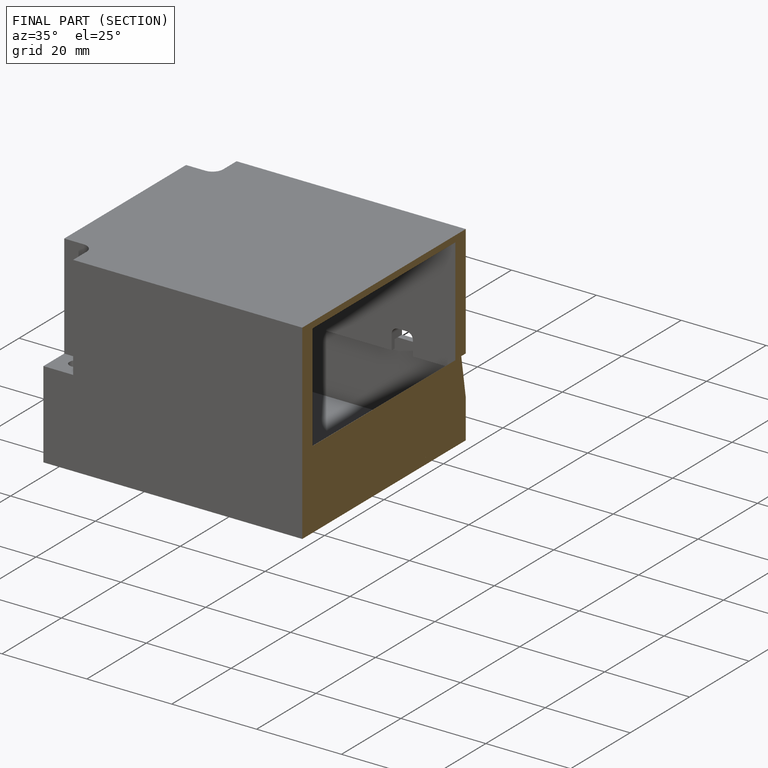
[diagram: finished part — half-section view (interior)]
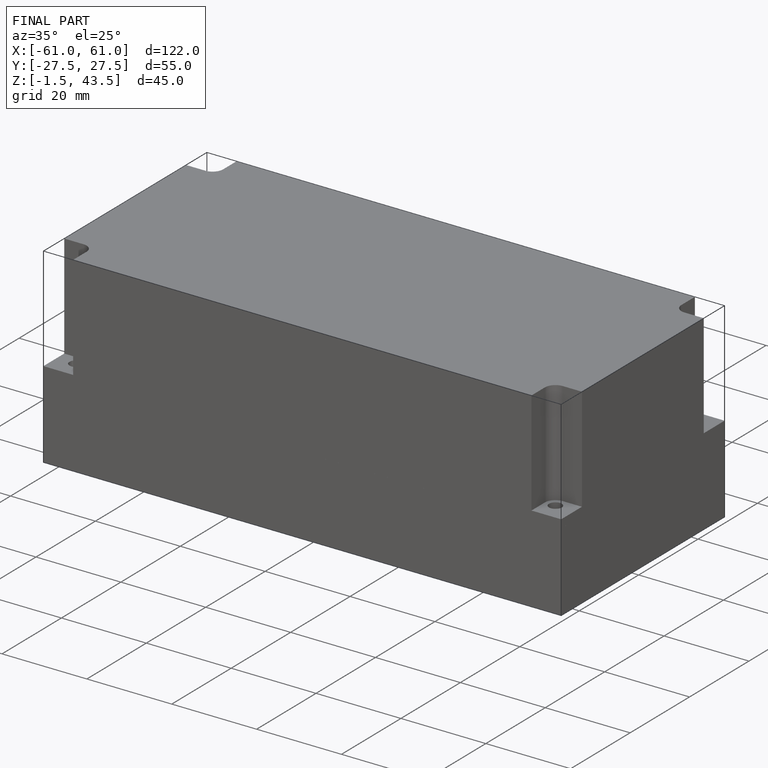
[diagram: finished part — iso view with bounding-box wireframe]
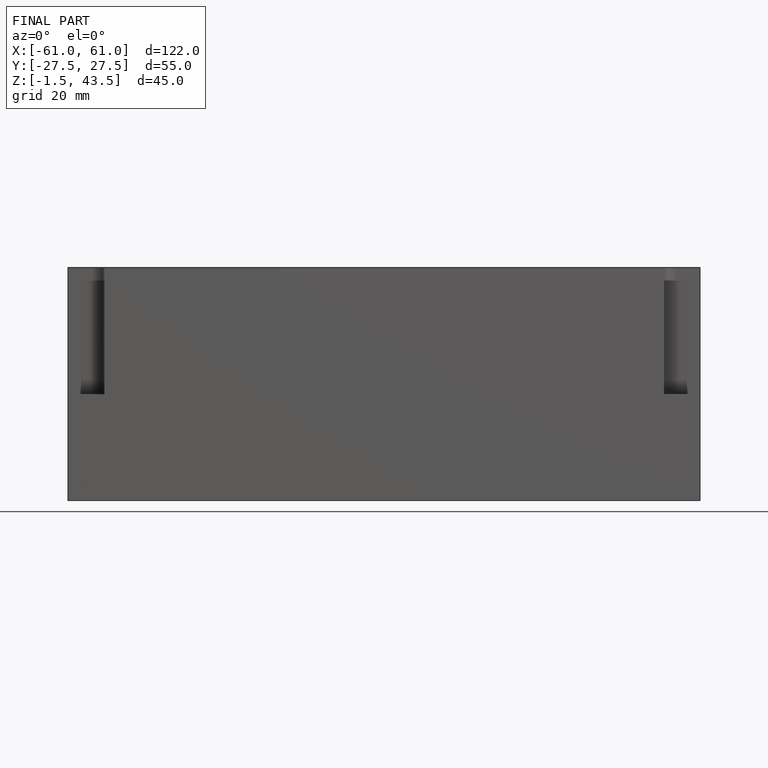
[diagram: finished part — front view with bounding-box wireframe]
